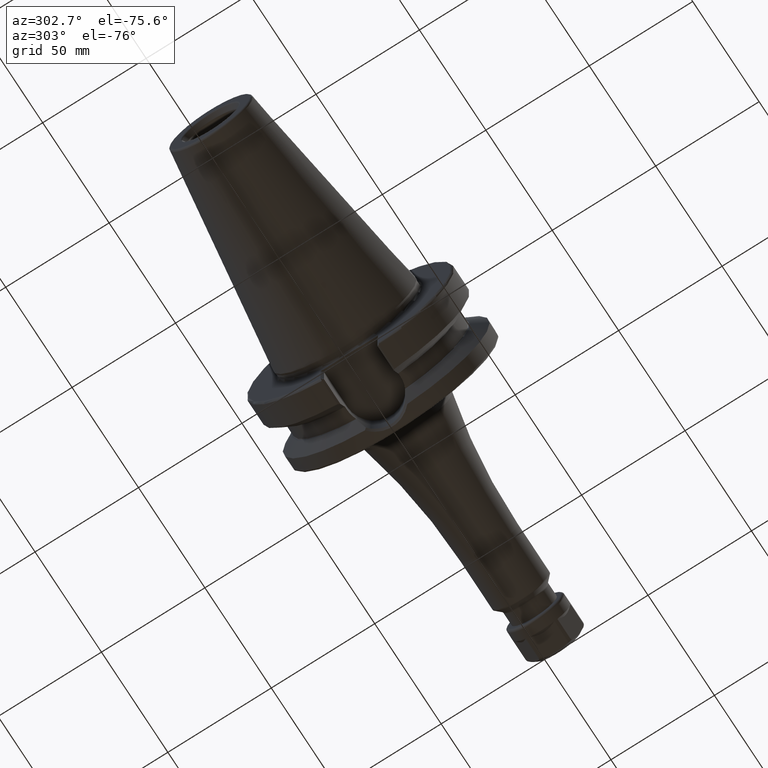
[diagram: clean part render]
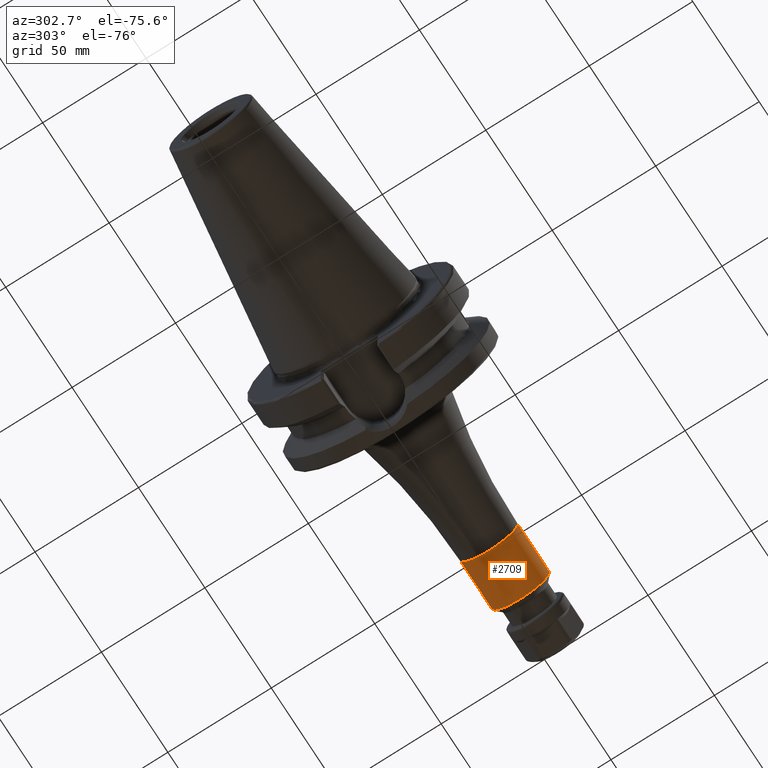
[diagram: same view with one face highlighted and labeled with its STEP entity id]
A machine part, auxiliary view. The second image highlights one B-rep face of the part: STEP entity #2709.
In plain terms, the highlighted cylindrical surface (edge-blend (fillet) strip) has radius 14 mm, axis along (1, 0, 0).
Its self-contained STEP definition (entity closure, byte-faithful):
#874=CARTESIAN_POINT('',(1.08E2,0.E0,0.E0));
#875=DIRECTION('',(1.E0,0.E0,0.E0));
#876=DIRECTION('',(0.E0,-1.E0,0.E0));
#877=AXIS2_PLACEMENT_3D('',#874,#875,#876);
#879=DIRECTION('',(-1.E0,0.E0,-5.072512419229E-13));
#880=VECTOR('',#879,2.398578643763E1);
#881=CARTESIAN_POINT('',(1.319857864376E2,-1.4E1,1.216451720802E-11));
#882=LINE('',#881,#880);
#883=CARTESIAN_POINT('',(1.319857864376E2,0.E0,0.E0));
#884=DIRECTION('',(-1.E0,0.E0,0.E0));
#885=DIRECTION('',(0.E0,1.E0,0.E0));
#886=AXIS2_PLACEMENT_3D('',#883,#884,#885);
#888=DIRECTION('',(-1.E0,0.E0,5.072445871874E-13));
#889=VECTOR('',#888,2.398578643763E1);
#890=CARTESIAN_POINT('',(1.319857864376E2,1.4E1,-1.216494583440E-11));
#891=LINE('',#890,#889);
#1491=CARTESIAN_POINT('',(1.319857864376E2,1.4E1,0.E0));
#1492=CARTESIAN_POINT('',(1.319857864376E2,-1.4E1,0.E0));
#1493=VERTEX_POINT('',#1491);
#1494=VERTEX_POINT('',#1492);
#1499=CARTESIAN_POINT('',(1.08E2,1.4E1,0.E0));
#1500=CARTESIAN_POINT('',(1.08E2,-1.4E1,0.E0));
#1501=VERTEX_POINT('',#1499);
#1502=VERTEX_POINT('',#1500);
#2695=CARTESIAN_POINT('',(3.243E1,0.E0,0.E0));
#2696=DIRECTION('',(1.E0,0.E0,0.E0));
#2697=DIRECTION('',(0.E0,-1.E0,0.E0));
#2698=AXIS2_PLACEMENT_3D('',#2695,#2696,#2697);
#2699=CYLINDRICAL_SURFACE('',#2698,1.4E1);
#2700=ORIENTED_EDGE('',*,*,#2689,.F.);
#2702=ORIENTED_EDGE('',*,*,#2701,.F.);
#2704=ORIENTED_EDGE('',*,*,#2703,.F.);
#2706=ORIENTED_EDGE('',*,*,#2705,.T.);
#2707=EDGE_LOOP('',(#2700,#2702,#2704,#2706));
#2708=FACE_OUTER_BOUND('',#2707,.F.);
#2709=ADVANCED_FACE('',(#2708),#2699,.T.);
#878=CIRCLE('',#877,1.4E1);
#887=CIRCLE('',#886,1.4E1);
#2689=EDGE_CURVE('',#1502,#1501,#878,.T.);
#2701=EDGE_CURVE('',#1494,#1502,#882,.T.);
#2703=EDGE_CURVE('',#1493,#1494,#887,.T.);
#2705=EDGE_CURVE('',#1493,#1501,#891,.T.);